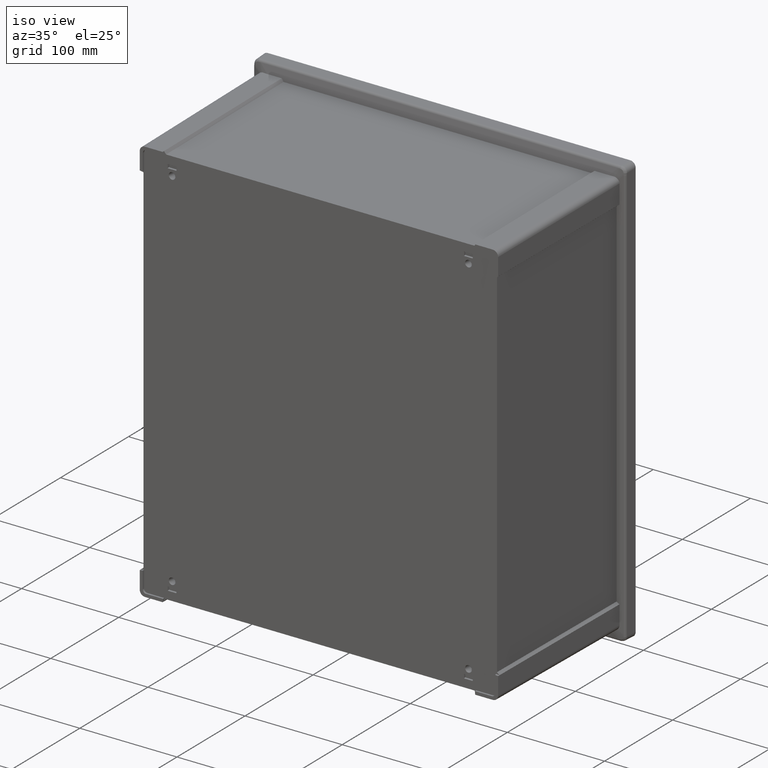
[diagram: clean part render]
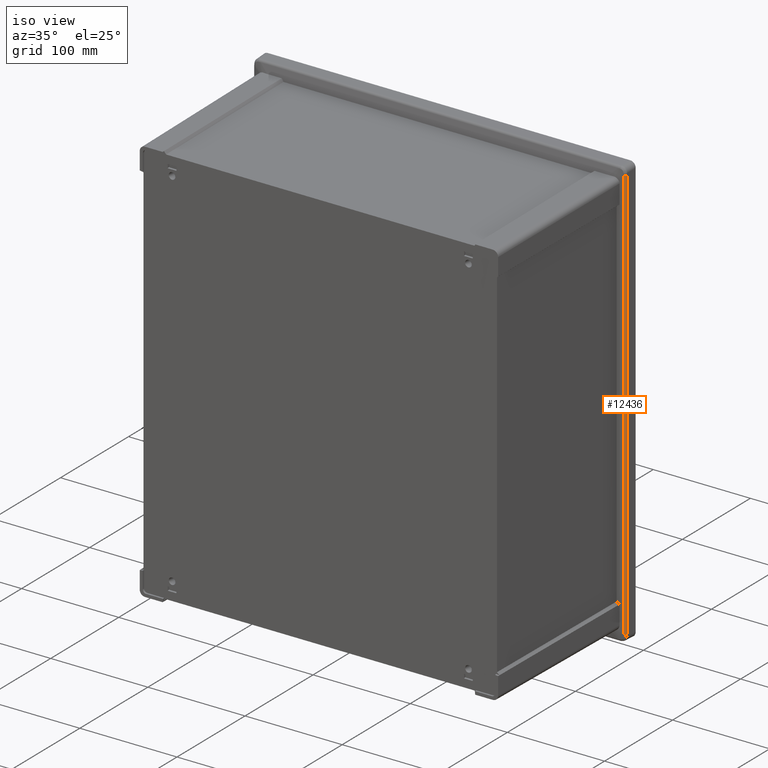
[diagram: same view with one face highlighted and labeled with its STEP entity id]
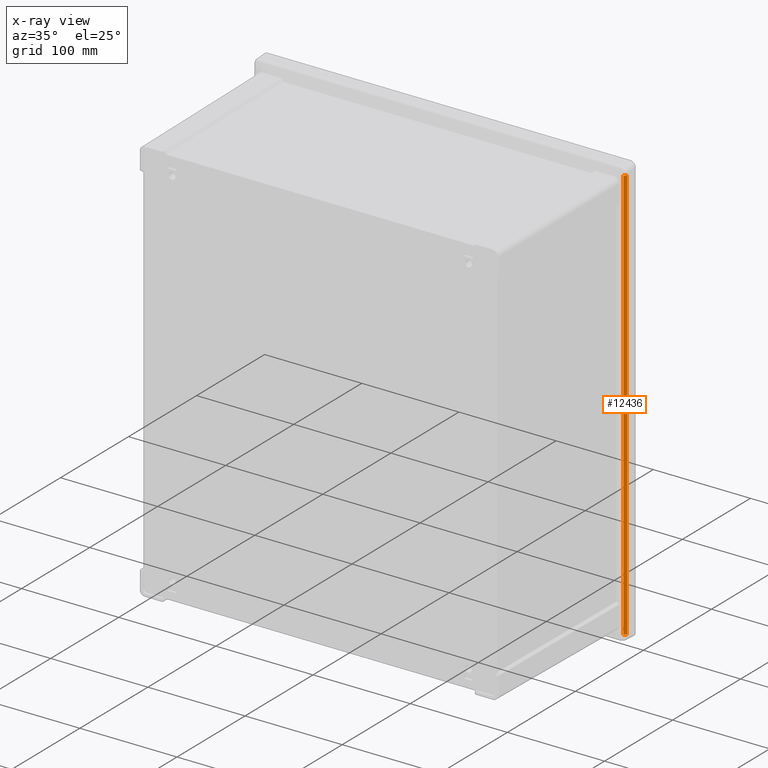
[diagram: x-ray of the same camera — body ghosted, the highlighted face saturated]
A machine part, iso view. The second image highlights one B-rep face of the part: STEP entity #12436.
The next image is the same camera in x-ray: the body ghosted, the highlighted face saturated — about 0% of this face is hidden behind the body in this view.
In plain terms, the highlighted cylindrical surface (edge-blend (fillet) strip) has radius 2.5 mm, axis along (0, 0, 1).
Its self-contained STEP definition (entity closure, byte-faithful):
#52 = ORIENTED_EDGE ( 'NONE', *, *, #9513, .F. ) ;
#339 = CIRCLE ( 'NONE', #7110, 2.500000000000002200 ) ;
#622 = EDGE_LOOP ( 'NONE', ( #11688, #11045, #1919, #52 ) ) ;
#1323 = DIRECTION ( 'NONE',  ( 0.0000000000000000000, 0.0000000000000000000, 1.000000000000000000 ) ) ;
#1881 = VECTOR ( 'NONE', #3909, 1000.000000000000000 ) ;
#1919 = ORIENTED_EDGE ( 'NONE', *, *, #10546, .F. ) ;
#1981 = CYLINDRICAL_SURFACE ( 'NONE', #5569, 2.500000000000002200 ) ;
#3859 = CARTESIAN_POINT ( 'NONE',  ( 189.0807983474330200, -11.96072703721204500, 213.5380490082368100 ) ) ;
#3909 = DIRECTION ( 'NONE',  ( -0.0000000000000000000, -0.0000000000000000000, 1.000000000000000000 ) ) ;
#4967 = DIRECTION ( 'NONE',  ( 1.000000000000000000, 0.0000000000000000000, 0.0000000000000000000 ) ) ;
#5117 = CARTESIAN_POINT ( 'NONE',  ( 189.6005775744774000, -14.40609603904656100, -220.9582404675457800 ) ) ;
#5263 = CARTESIAN_POINT ( 'NONE',  ( 189.0807983474330200, -11.96072703721204500, -220.9582404675457800 ) ) ;
#5569 = AXIS2_PLACEMENT_3D ( 'NONE', #5263, #10708, #6367 ) ;
#6215 = EDGE_CURVE ( 'NONE', #13517, #12341, #11572, .T. ) ;
#6274 = CARTESIAN_POINT ( 'NONE',  ( 191.5792754149807700, -12.04797577896829900, -213.5380490082368400 ) ) ;
#6367 = DIRECTION ( 'NONE',  ( 1.000000000000000000, 0.0000000000000000000, 0.0000000000000000000 ) ) ;
#6791 = CARTESIAN_POINT ( 'NONE',  ( 189.6005775744774000, -14.40609603904656500, 213.5380490082368100 ) ) ;
#7098 = CARTESIAN_POINT ( 'NONE',  ( 189.6005775744774000, -14.40609603904656100, -213.5380490082368400 ) ) ;
#7110 = AXIS2_PLACEMENT_3D ( 'NONE', #13556, #1323, #10044 ) ;
#9355 = VECTOR ( 'NONE', #12547, 1000.000000000000000 ) ;
#9430 = EDGE_CURVE ( 'NONE', #11604, #12341, #339, .T. ) ;
#9493 = VERTEX_POINT ( 'NONE', #6791 ) ;
#9513 = EDGE_CURVE ( 'NONE', #11604, #9493, #12652, .T. ) ;
#10044 = DIRECTION ( 'NONE',  ( 1.000000000000000000, 0.0000000000000000000, 0.0000000000000000000 ) ) ;
#10220 = AXIS2_PLACEMENT_3D ( 'NONE', #3859, #13690, #4967 ) ;
#10546 = EDGE_CURVE ( 'NONE', #9493, #13517, #13809, .T. ) ;
#10708 = DIRECTION ( 'NONE',  ( 0.0000000000000000000, 0.0000000000000000000, 1.000000000000000000 ) ) ;
#11045 = ORIENTED_EDGE ( 'NONE', *, *, #6215, .F. ) ;
#11572 = LINE ( 'NONE', #12413, #9355 ) ;
#11604 = VERTEX_POINT ( 'NONE', #7098 ) ;
#11688 = ORIENTED_EDGE ( 'NONE', *, *, #9430, .T. ) ;
#11812 = CARTESIAN_POINT ( 'NONE',  ( 191.5792754149807700, -12.04797577896829900, 213.5380490082368100 ) ) ;
#12244 = FACE_OUTER_BOUND ( 'NONE', #622, .T. ) ;
#12341 = VERTEX_POINT ( 'NONE', #6274 ) ;
#12413 = CARTESIAN_POINT ( 'NONE',  ( 191.5792754149807700, -12.04797577896829900, -221.4471312404302500 ) ) ;
#12436 = ADVANCED_FACE ( 'NONE', ( #12244 ), #1981, .T. ) ;
#12547 = DIRECTION ( 'NONE',  ( 0.0000000000000000000, 0.0000000000000000000, -1.000000000000000000 ) ) ;
#12652 = LINE ( 'NONE', #5117, #1881 ) ;
#13517 = VERTEX_POINT ( 'NONE', #11812 ) ;
#13556 = CARTESIAN_POINT ( 'NONE',  ( 189.0807983474330200, -11.96072703721204500, -213.5380490082368400 ) ) ;
#13690 = DIRECTION ( 'NONE',  ( 0.0000000000000000000, 0.0000000000000000000, 1.000000000000000000 ) ) ;
#13809 = CIRCLE ( 'NONE', #10220, 2.500000000000002200 ) ;